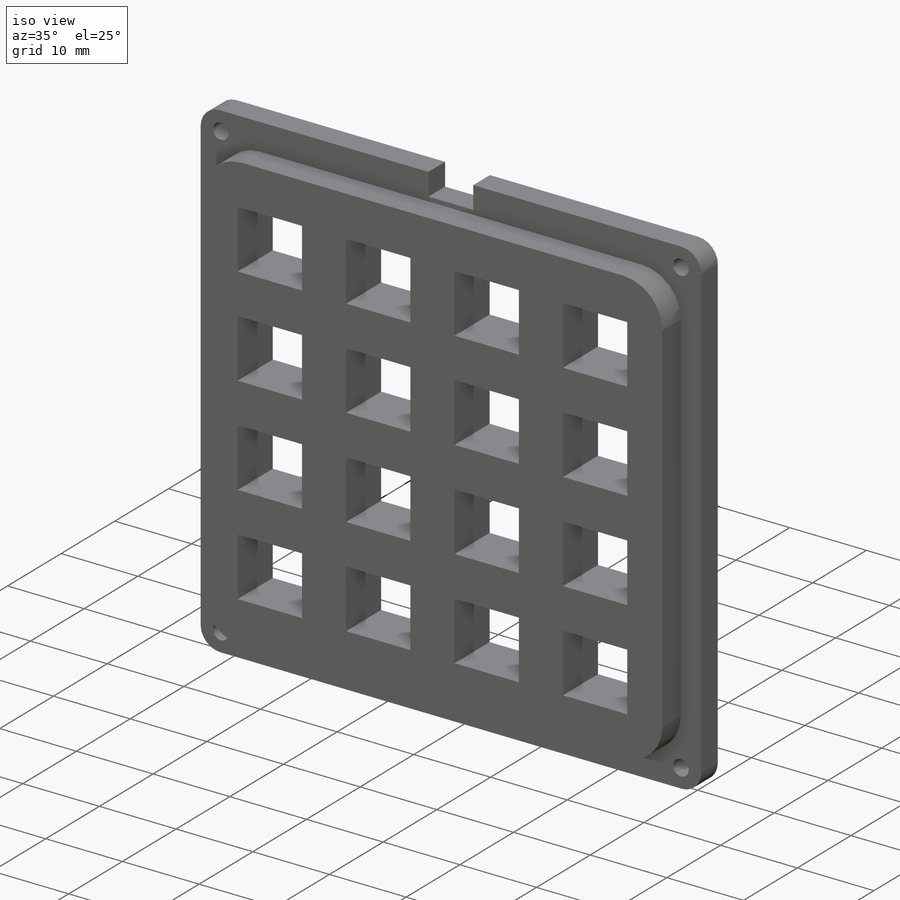
[diagram: iso view]
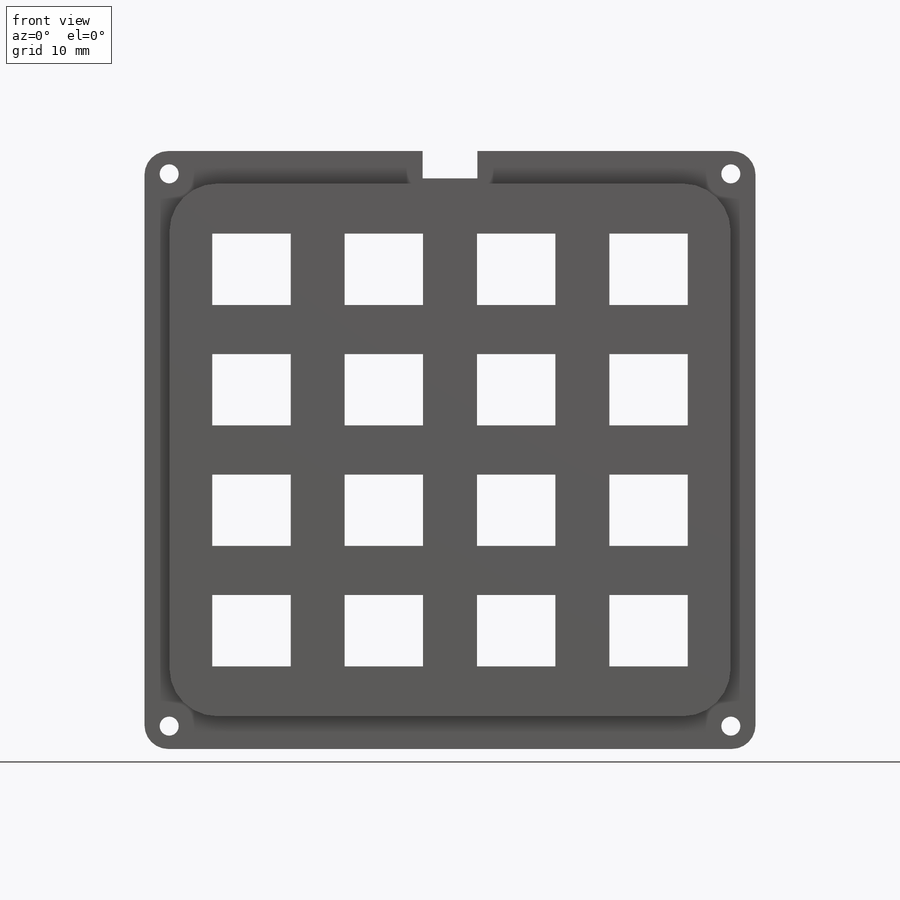
[diagram: front view]
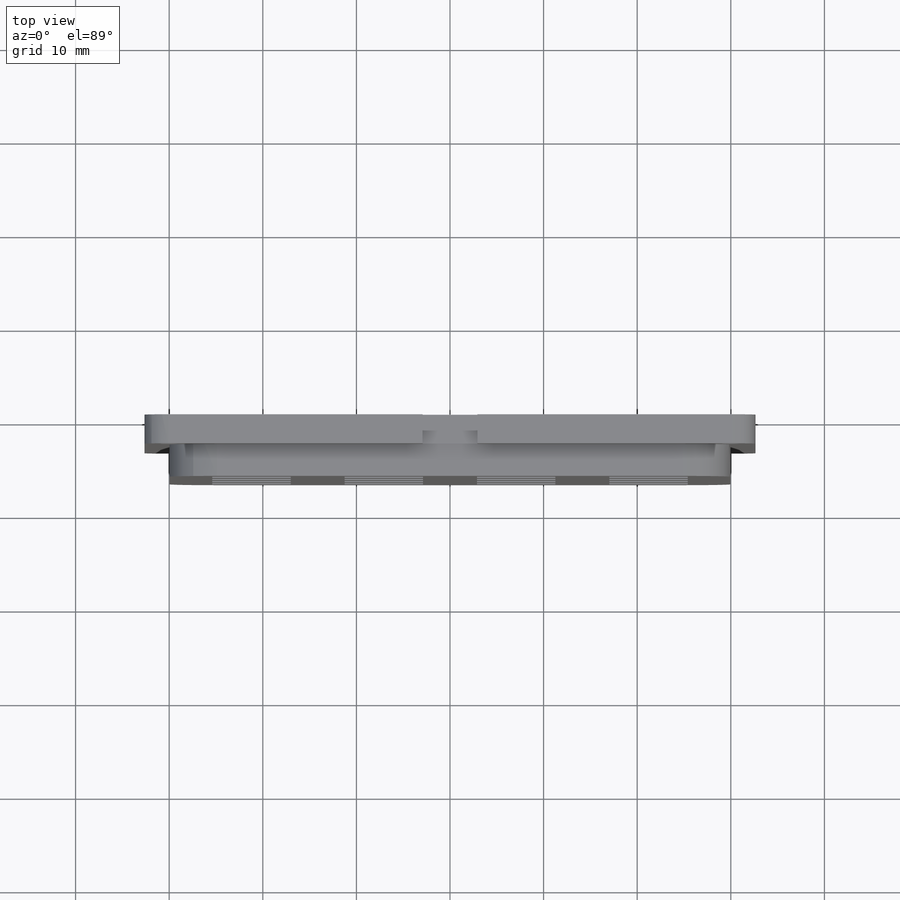
[diagram: top view]
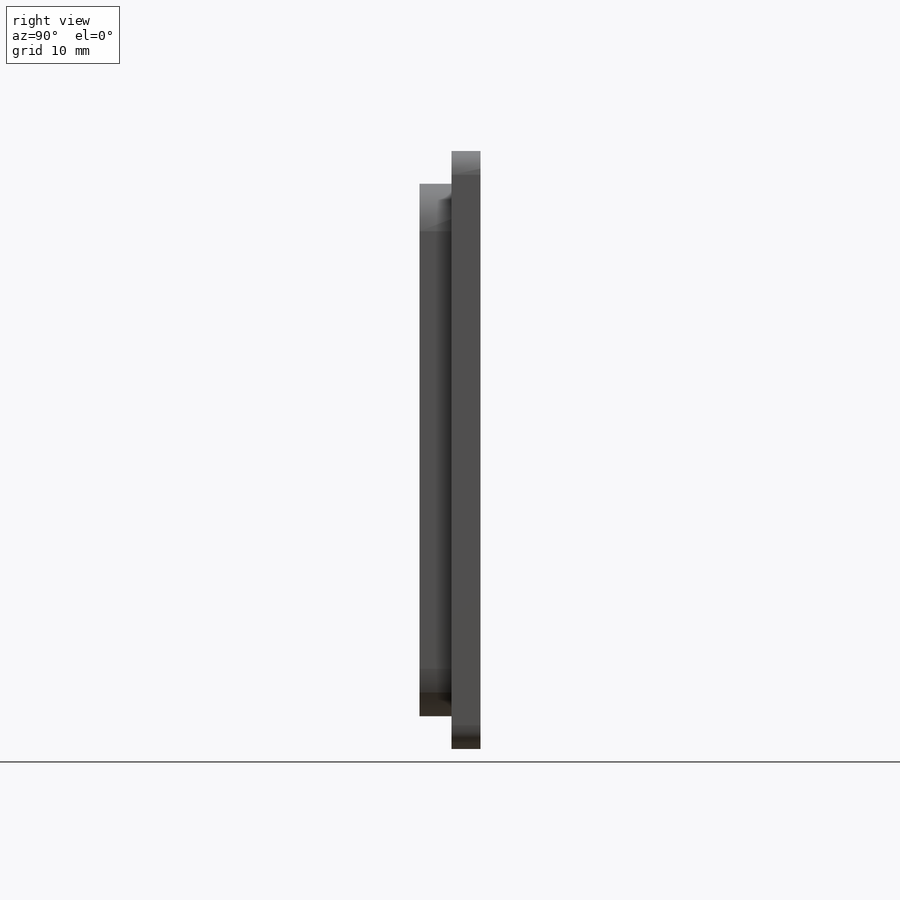
[diagram: right view]
SOLIDWORKS PART (.sldprt)
format: sldprt  version: not decoded by parser v0  size: 282,624 bytes
history: native  units: mm
features: sketch x4, extrude x2, cut_extrude x2, material x1, pattern_linear x1 (+14 scaffold rows collapsed)
feature tree (24):
  scaffold x14  (default folders/planes/origin — collapsed)
  material  "Material <not specified>"
  sketch  "Sketch1"  dims[D3=2.54mm D1=63.881mm D2=65.278mm D4=2.921mm D5=5.842mm]
  extrude  "base"  Depth=3.0988mm
  sketch  "Sketch4"  dims[D1=2.032mm D2=59.0mm D3=60.0mm]
  cut_extrude  "mount holes"  [1 undecoded]
  sketch  "Sketch2"  dims[D3=4.572mm D1=59.944mm D2=56.896mm]
  extrude  "Extrude2"  Depth=3.429mm
  sketch  "Sketch3"  dims[D1=8.382mm D2=7.62mm D3=25.4mm D4=23.114mm]
  cut_extrude  "key"  [1 undecoded]
  pattern_linear  "keys"  Count1=4 Count2=4 Spacing1=14.14018mm Spacing2=12.869418mm
decode coverage: 7 of 9 modeling features carry decoded parameters
note: 2 parameter values undecoded
note: suppression state not decoded; provenance and decode notes live in map.json
